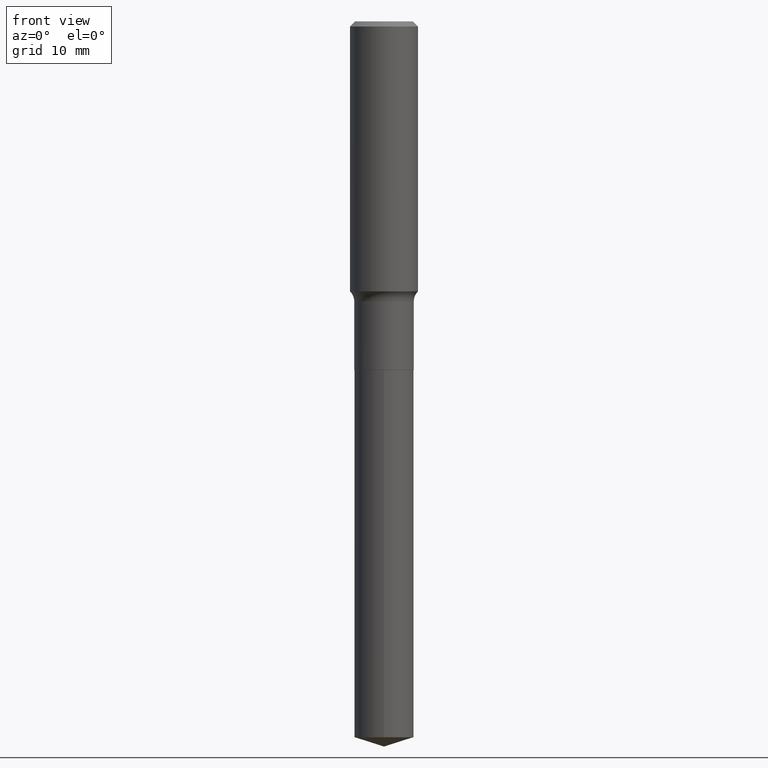
[diagram: clean part render]
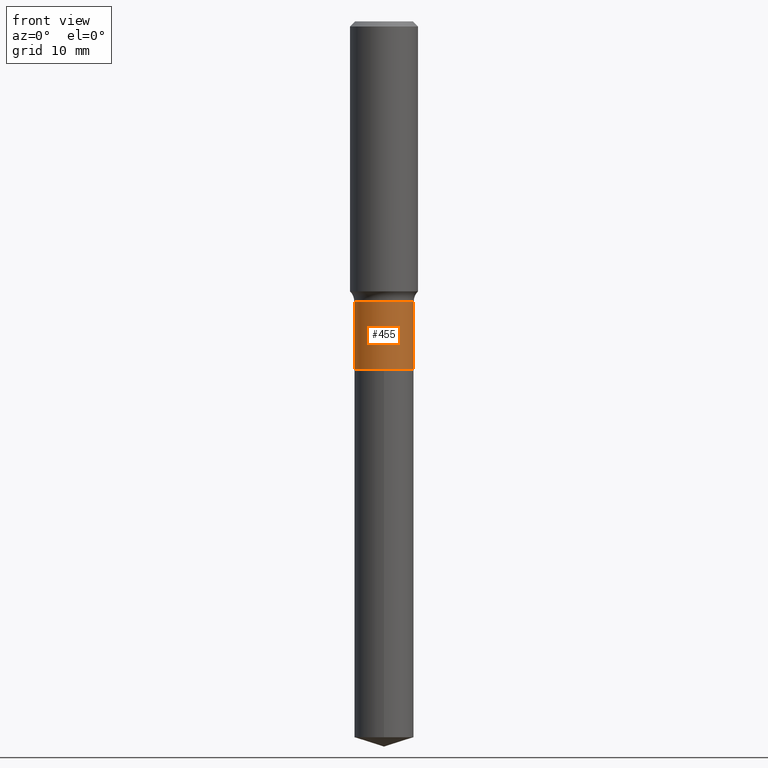
[diagram: same view with one face highlighted and labeled with its STEP entity id]
A machine part, front view. The second image highlights one B-rep face of the part: STEP entity #455.
In plain terms, the highlighted cylindrical surface (edge-blend (fillet) strip) has radius 4.1669 mm, axis along (-0, 0, 1).
Its self-contained STEP definition (entity closure, byte-faithful):
#3 = AXIS2_PLACEMENT_3D ( 'NONE', #56, #35, #143 ) ;
#25 = DIRECTION ( 'NONE',  ( 1.000000000000000000, -6.982962677686266711E-15, 0.000000000000000000 ) ) ;
#35 = DIRECTION ( 'NONE',  ( -2.445468806185136597E-29, 3.491481338843145583E-15, 1.000000000000000000 ) ) ;
#56 = CARTESIAN_POINT ( 'NONE',  ( 0.000000000000000000, 0.000000000000000000, 0.000000000000000000 ) ) ;
#60 = ORIENTED_EDGE ( 'NONE', *, *, #381, .F. ) ;
#61 = CIRCLE ( 'NONE', #316, 0.1640499999999999459 ) ;
#69 = ORIENTED_EDGE ( 'NONE', *, *, #115, .T. ) ;
#102 = CARTESIAN_POINT ( 'NONE',  ( -0.1640500000000000014, 1.165645358014444365E-15, -8.069513015563172164E-30 ) ) ;
#109 = LINE ( 'NONE', #263, #428 ) ;
#111 = ORIENTED_EDGE ( 'NONE', *, *, #204, .T. ) ;
#115 = EDGE_CURVE ( 'NONE', #144, #286, #109, .T. ) ;
#141 = EDGE_LOOP ( 'NONE', ( #60, #111, #69, #475 ) ) ;
#143 = DIRECTION ( 'NONE',  ( 1.000000000000000000, -6.982962677686266711E-15, 4.876176775795935232E-29 ) ) ;
#144 = VERTEX_POINT ( 'NONE', #457 ) ;
#161 = VECTOR ( 'NONE', #431, 39.37007874015748143 ) ;
#165 = DIRECTION ( 'NONE',  ( 1.000000000000000000, -6.982962677686264344E-15, 0.000000000000000000 ) ) ;
#202 = CARTESIAN_POINT ( 'NONE',  ( 4.698723764204121011E-29, -6.708532244453218971E-15, -1.921399999999999997 ) ) ;
#204 = EDGE_CURVE ( 'NONE', #289, #144, #221, .T. ) ;
#221 = CIRCLE ( 'NONE', #308, 0.1640500000000000014 ) ;
#234 = CARTESIAN_POINT ( 'NONE',  ( -0.1640499999999999459, -4.885091802200726621E-15, -1.544599999999999973 ) ) ;
#253 = CYLINDRICAL_SURFACE ( 'NONE', #3, 0.1640500000000000014 ) ;
#263 = CARTESIAN_POINT ( 'NONE',  ( 0.1640500000000000014, -1.145555027274432057E-15, 7.999368000693231542E-30 ) ) ;
#286 = VERTEX_POINT ( 'NONE', #384 ) ;
#289 = VERTEX_POINT ( 'NONE', #426 ) ;
#306 = DIRECTION ( 'NONE',  ( -2.445468806185136597E-29, 3.491481338843145583E-15, 1.000000000000000000 ) ) ;
#308 = AXIS2_PLACEMENT_3D ( 'NONE', #202, #306, #165 ) ;
#309 = DIRECTION ( 'NONE',  ( -2.445468806185136877E-29, 3.491481338843145188E-15, 1.000000000000000000 ) ) ;
#316 = AXIS2_PLACEMENT_3D ( 'NONE', #488, #334, #25 ) ;
#334 = DIRECTION ( 'NONE',  ( -2.445468806185136597E-29, 3.491481338843145583E-15, 1.000000000000000000 ) ) ;
#381 = EDGE_CURVE ( 'NONE', #289, #491, #432, .T. ) ;
#384 = CARTESIAN_POINT ( 'NONE',  ( 0.1640499999999999459, -6.538497103251554269E-15, -1.544599999999999973 ) ) ;
#426 = CARTESIAN_POINT ( 'NONE',  ( -0.1640500000000000014, -4.885091802200726621E-15, -1.921399999999999997 ) ) ;
#428 = VECTOR ( 'NONE', #309, 39.37007874015748143 ) ;
#431 = DIRECTION ( 'NONE',  ( -2.445468806185136877E-29, 3.491481338843145188E-15, 1.000000000000000000 ) ) ;
#432 = LINE ( 'NONE', #102, #161 ) ;
#437 = FACE_OUTER_BOUND ( 'NONE', #141, .T. ) ;
#455 = ADVANCED_FACE ( 'NONE', ( #437 ), #253, .T. ) ;
#457 = CARTESIAN_POINT ( 'NONE',  ( 0.1640500000000000014, -7.854087271727651423E-15, -1.921399999999999997 ) ) ;
#475 = ORIENTED_EDGE ( 'NONE', *, *, #492, .F. ) ;
#488 = CARTESIAN_POINT ( 'NONE',  ( 3.777271118033562272E-29, -5.392942075977122606E-15, -1.544599999999999973 ) ) ;
#491 = VERTEX_POINT ( 'NONE', #234 ) ;
#492 = EDGE_CURVE ( 'NONE', #491, #286, #61, .T. ) ;